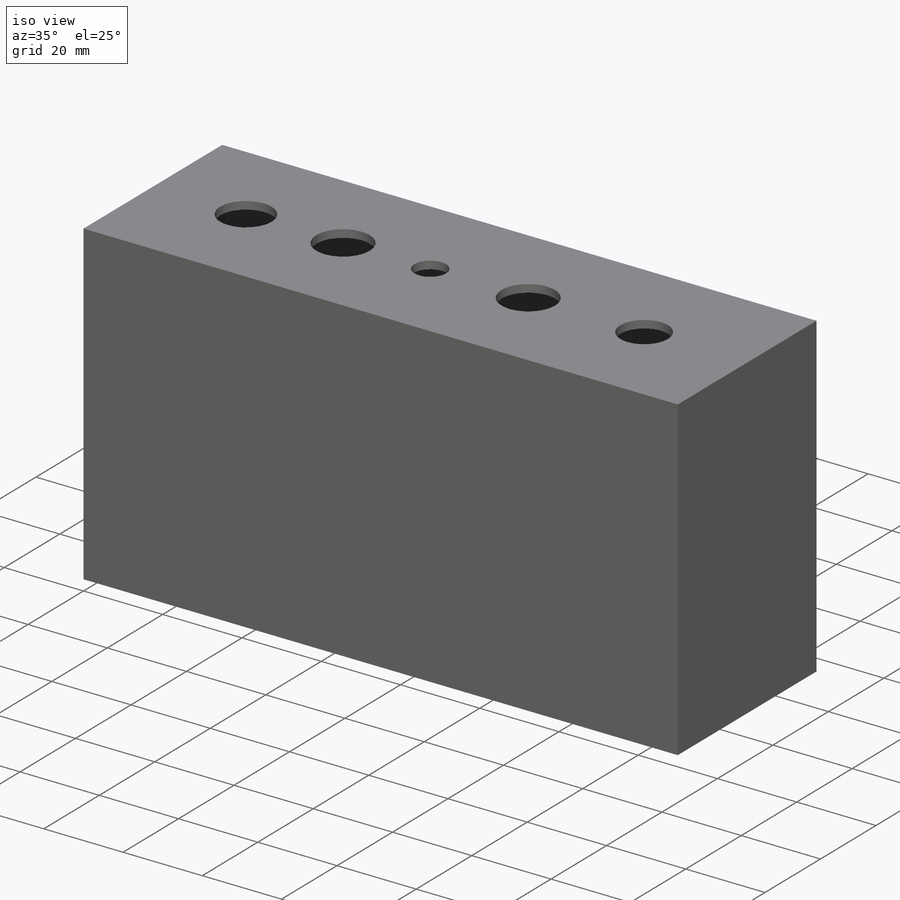
[diagram: iso view]
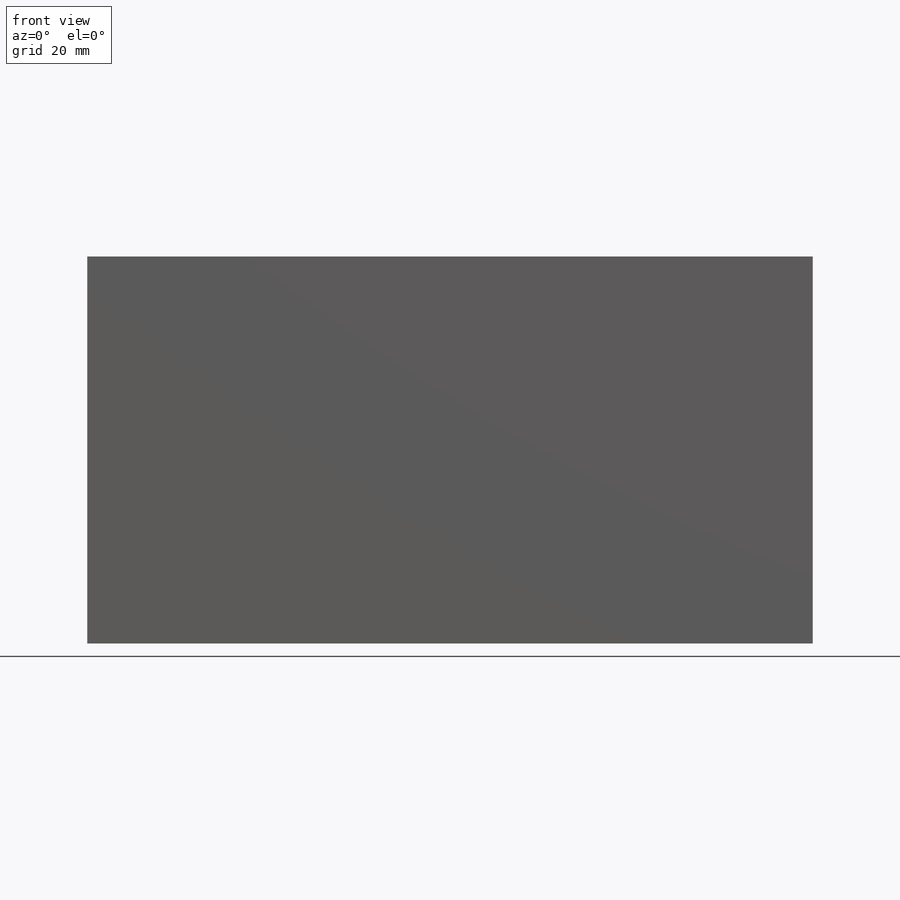
[diagram: front view]
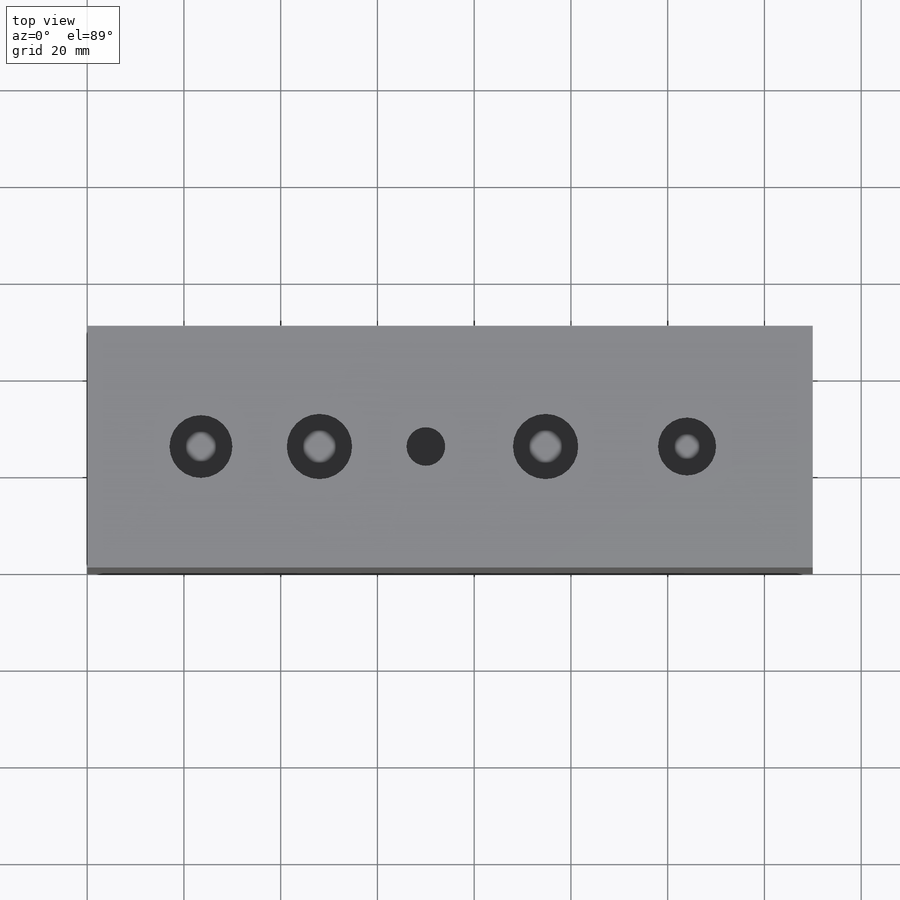
[diagram: top view]
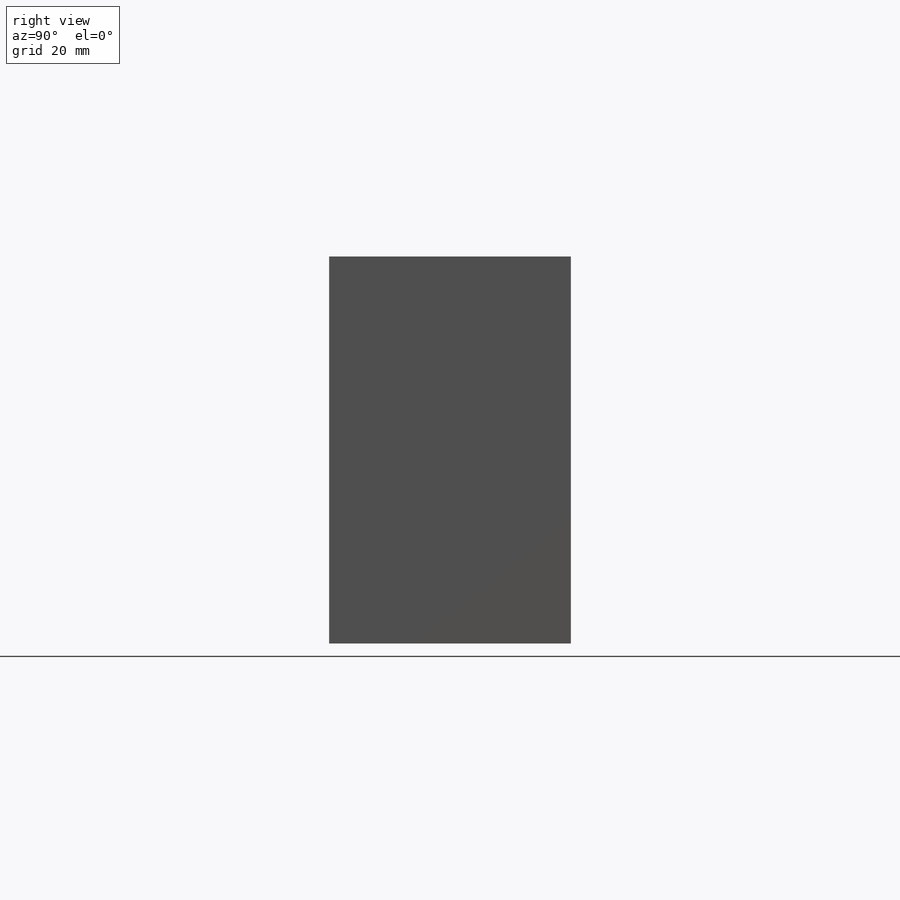
[diagram: right view]
SOLIDWORKS PART (.sldprt)
format: sldprt  version: not decoded by parser v0  size: 241,152 bytes
history: native  units: mm
features: sketch x6, shell x2, cut_extrude x2, material x1, extrude x1, plane x1 (+16 scaffold rows collapsed)
feature tree (29):
  scaffold x16  (default folders/planes/origin — collapsed)
  material  "ABS PC"
  sketch  "Sketch1"  dims[D1=50.0mm D2=150.0mm]
  extrude  "Extrude5"  Depth=80mm
  shell  "Shell1"  Thickness=2mm
  sketch  "Sketch8"  dims[c1.D7=13.0mm c1.D8=13.5mm c1.D9=8.0mm c1.D10=13.5mm c1.D11=12.0mm c1.D1=23.5mm c1.D2=24.5mm c1.D3=22.0mm c1.D4=24.75mm c1.D5=~21.22472mm c1.D6=48.0mm c2.D5=29.25mm c2.D6=26.0mm c2.D7=150.0mm]
  cut_extrude  "Extrude6"  [1 undecoded]
  sketch  "Sketch9"
  sketch  "Sketch10"  dims[D1=10.0mm D2=2.0mm D3=5.0mm]
  sketch  "Sketch11"
  shell  "Point2"  [1 undecoded]
  plane  "Plane1"
  sketch  "Sketch12"
  cut_extrude  "Cut-Extrude1"  Depth=200mm
decode coverage: 6 of 11 modeling features carry decoded parameters
note: ~ marks probable driven/reference dimensions
note: 2 parameter values undecoded
note: suppression state not decoded; provenance and decode notes live in map.json
